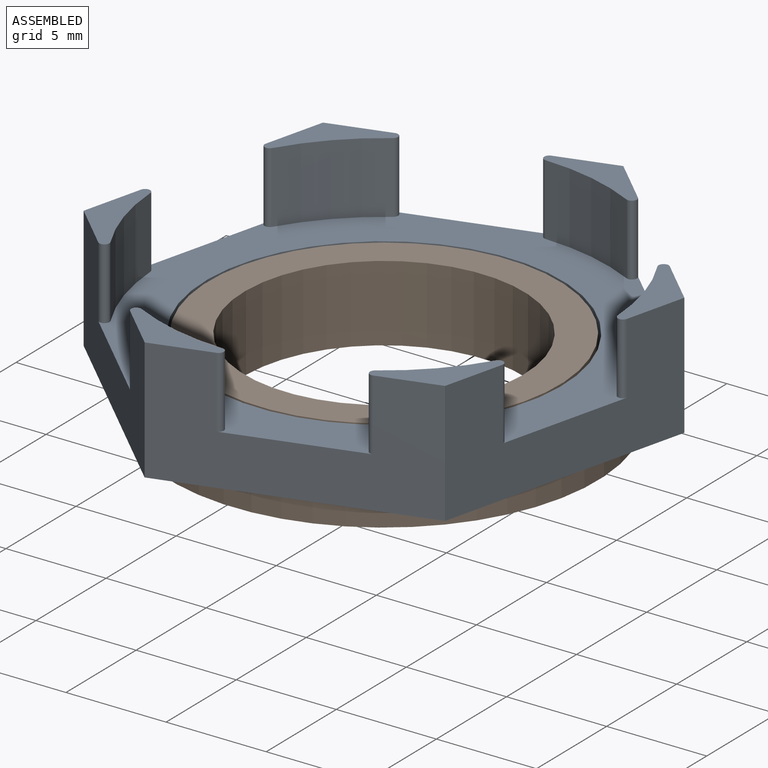
[diagram: assembled view]
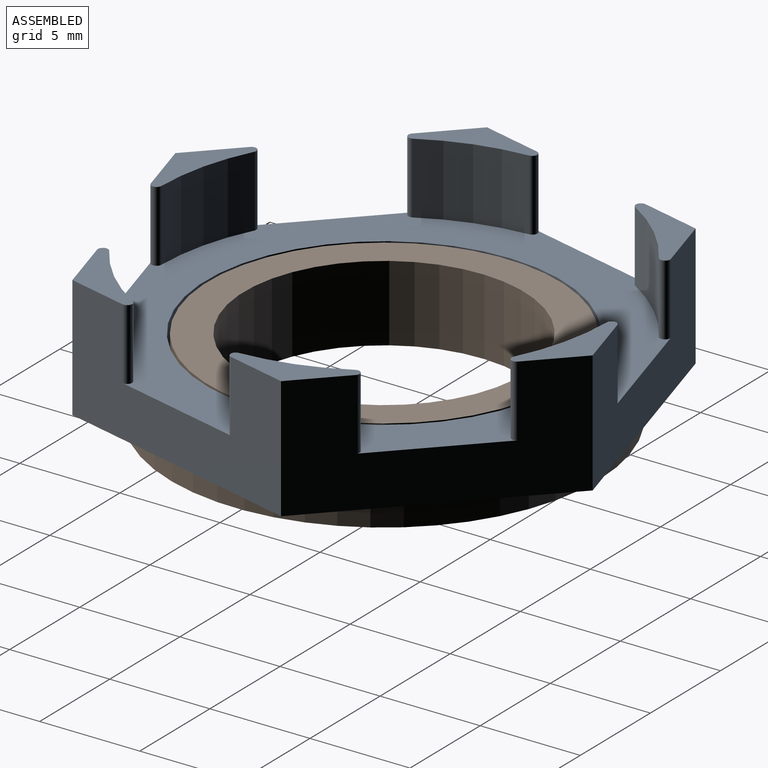
[diagram: assembled view, second angle]
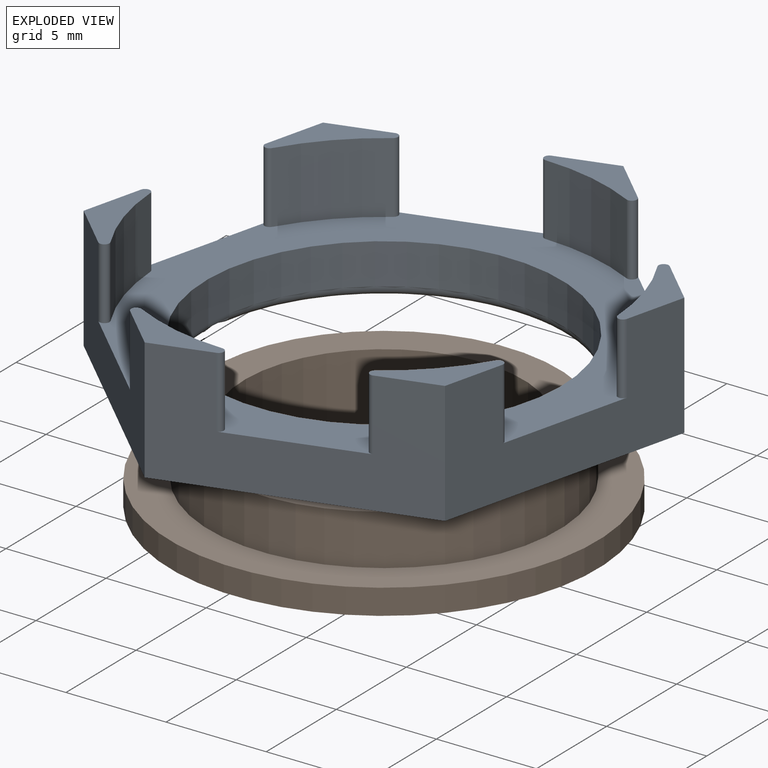
[diagram: exploded view]
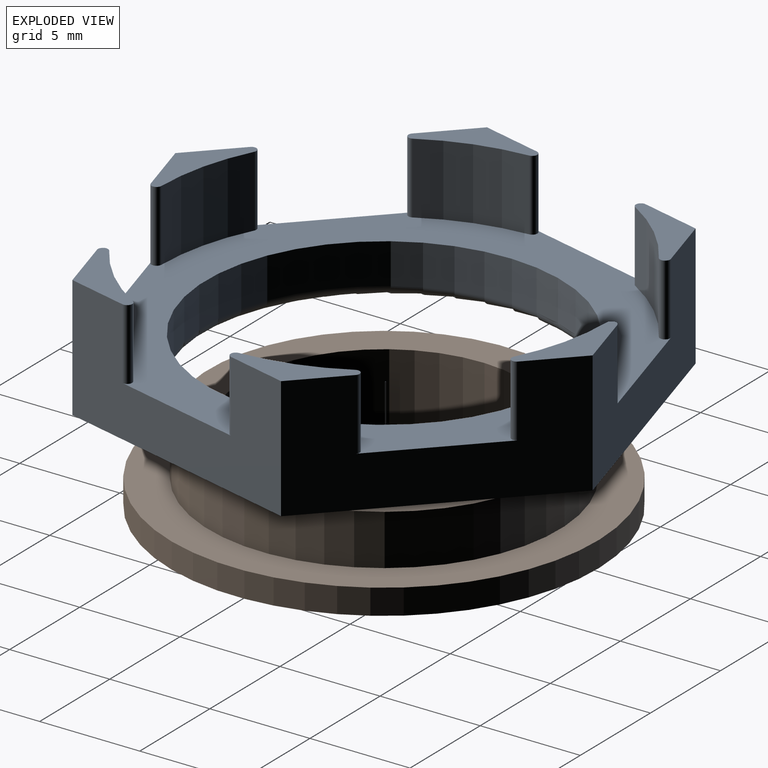
[diagram: exploded view, second angle]
ASSEMBLY  parts=2 mates=2
PART A: 34 faces, bbox 26x22.5x6.1 mm
  f0: cylinder r=11.25mm len=4.35mm, axis (0,0,-1), area 18mm2, adj f3,f4,f5,f30
  f1: plane 11.25x6.5mm, normal (0.87,0.5,0), area 55.1mm2, adj f2,f3,f4,f22,f27,f29,f30,f31
  f2: plane 12.99x6.1mm, normal (0,1,0), area 55.1mm2, adj f1,f3,f5,f7,f8,f9,f30,f31
  f3: plane 4.96x3.08mm, normal (0,0,1), area 5.8mm2, adj f0,f1,f2,f4,f5
  f4: cylinder r=0.25mm len=3.56mm, axis (0,0,-1), area 2.6mm2, adj f0,f1,f3,f30
  f5: cylinder r=0.25mm len=3.56mm, axis (0,0,-1), area 2.6mm2, adj f0,f2,f3,f30
  f6: cylinder r=11.25mm len=4.35mm, axis (0,0,-1), area 18mm2, adj f8,f9,f10,f30
  f7: plane 11.25x6.5mm, normal (-0.87,0.5,0), area 55.1mm2, adj f2,f8,f10,f12,f13,f14,f30,f31
  f8: plane 4.96x3.08mm, normal (0,0,1), area 5.8mm2, adj f2,f6,f7,f9,f10
  f9: cylinder r=0.25mm len=3.56mm, axis (0,0,-1), area 2.6mm2, adj f2,f6,f8,f30
  f10: cylinder r=0.25mm len=3.56mm, axis (0,0,-1), area 2.6mm2, adj f6,f7,f8,f30
  f11: cylinder r=11.25mm len=5.03mm, axis (0,0,-1), area 18mm2, adj f13,f14,f15,f30
  f12: plane 11.25x6.5mm, normal (-0.87,-0.5,0), area 55.1mm2, adj f7,f13,f15,f17,f18,f19,f30,f31
  f13: plane 5.65x2.03mm, normal (0,0,1), area 5.8mm2, adj f7,f11,f12,f14,f15
  f14: cylinder r=0.25mm len=3.56mm, axis (0,0,-1), area 2.6mm2, adj f7,f11,f13,f30
  f15: cylinder r=0.25mm len=3.56mm, axis (0,0,-1), area 2.6mm2, adj f11,f12,f13,f30
  f16: cylinder r=11.25mm len=4.35mm, axis (0,0,-1), area 18mm2, adj f18,f19,f20,f30
  f17: plane 12.99x6.1mm, normal (0,-1,0), area 55.1mm2, adj f12,f18,f20,f22,f23,f24,f30,f31
  f18: plane 4.96x3.08mm, normal (0,0,1), area 5.8mm2, adj f12,f16,f17,f19,f20
  f19: cylinder r=0.25mm len=3.56mm, axis (0,0,-1), area 2.6mm2, adj f12,f16,f18,f30
  f20: cylinder r=0.25mm len=3.56mm, axis (0,0,-1), area 2.6mm2, adj f16,f17,f18,f30
  f21: cylinder r=11.25mm len=4.35mm, axis (0,0,-1), area 18mm2, adj f23,f24,f25,f30
  f22: plane 11.25x6.5mm, normal (0.87,-0.5,0), area 55.1mm2, adj f1,f17,f23,f25,f27,f28,f30,f31
  f23: plane 4.96x3.08mm, normal (0,0,1), area 5.8mm2, adj f17,f21,f22,f24,f25
  f24: cylinder r=0.25mm len=3.56mm, axis (0,0,-1), area 2.6mm2, adj f17,f21,f23,f30
  f25: cylinder r=0.25mm len=3.56mm, axis (0,0,-1), area 2.6mm2, adj f21,f22,f23,f30
  f26: cylinder r=11.25mm len=5.03mm, axis (0,0,-1), area 18mm2, adj f27,f28,f29,f30
  f27: plane 5.65x2.03mm, normal (0,0,1), area 5.8mm2, adj f1,f22,f26,f28,f29
  f28: cylinder r=0.25mm len=3.56mm, axis (0,0,-1), area 2.6mm2, adj f22,f26,f27,f30
  f29: cylinder r=0.25mm len=3.56mm, axis (0,0,-1), area 2.6mm2, adj f1,f26,f27,f30
  f30: plane 22.87x22.5mm, normal (0,0,1), area 155.1mm2, adj f0,f1,f2,f4,f5,f6,f7,f9
  f31: plane 25.98x22.5mm, normal (0,0,-1), area 161mm2, adj f1,f2,f7,f12,f17,f22,f33
  f32: cylinder r=8.89mm len=17.78mm, axis (0,0,1), area 113.5mm2, adj f30,f33
  f33: torus R=9.4mm, axis (0,0,1), area 45.5mm2, adj f31,f32
PART B: 6 faces, bbox 21.3x21.3x3.8 mm
  f0: plane 17.53x17.53mm, normal (0,0,1), area 88mm2, adj f1,f5
  f1: cylinder r=6.99mm len=13.97mm, axis (0,0,-1), area 167.2mm2, adj f0,f2
  f2: plane 21.34x21.34mm, normal (0,0,-1), area 204.3mm2, adj f1,f3
  f3: cylinder r=10.67mm len=21.34mm, axis (0,0,-1), area 85.1mm2, adj f2,f4
  f4: plane 21.34x21.34mm, normal (0,0,1), area 116.3mm2, adj f3,f5
  f5: cylinder r=8.76mm len=17.53mm, axis (0,0,-1), area 139.9mm2, adj f0,f4
PLACE A rot(axis=(0,0,-1),103.9deg) t=(-13.6,15.68,-7.32)mm
PLACE B rot(axis=(0,0,-1),103.9deg) t=(-13.6,15.68,-8.59)mm
MATE planar A.f31 <-> B.f1  axis (0,0,-1) through (-16.71,26.49,-7.32)mm
MATE slider A.f0 <-> B.f1  axis (0,0,1) through (-13.6,15.68,-5.79)mm
